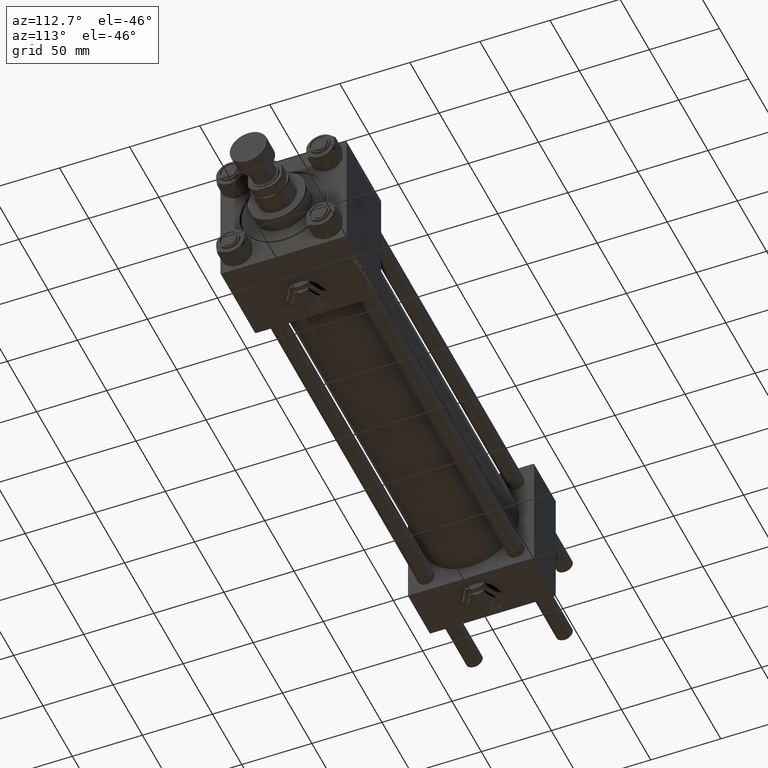
[diagram: clean part render]
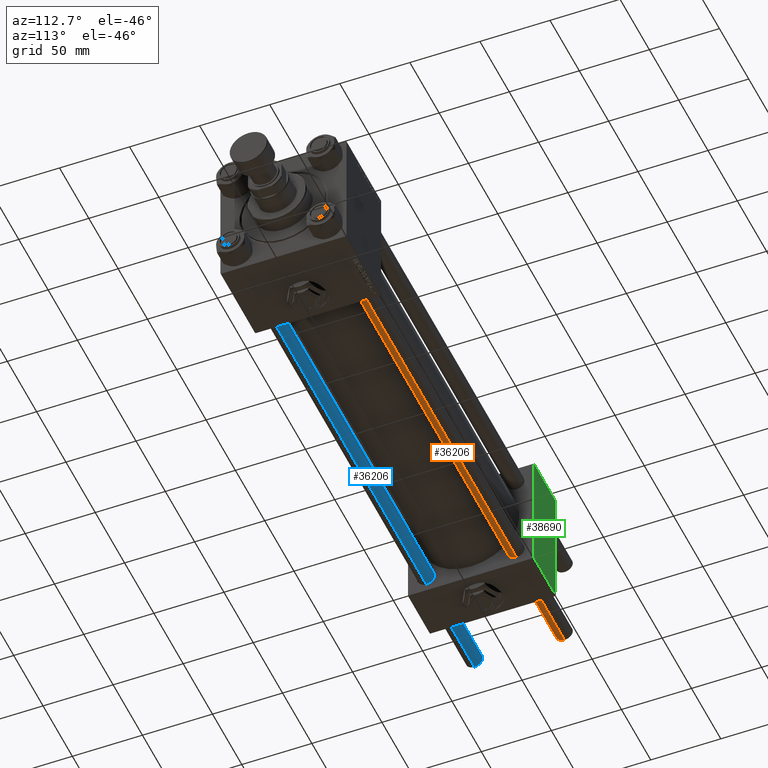
[diagram: same view with three faces highlighted in distinct colors, each labeled with its STEP entity id]
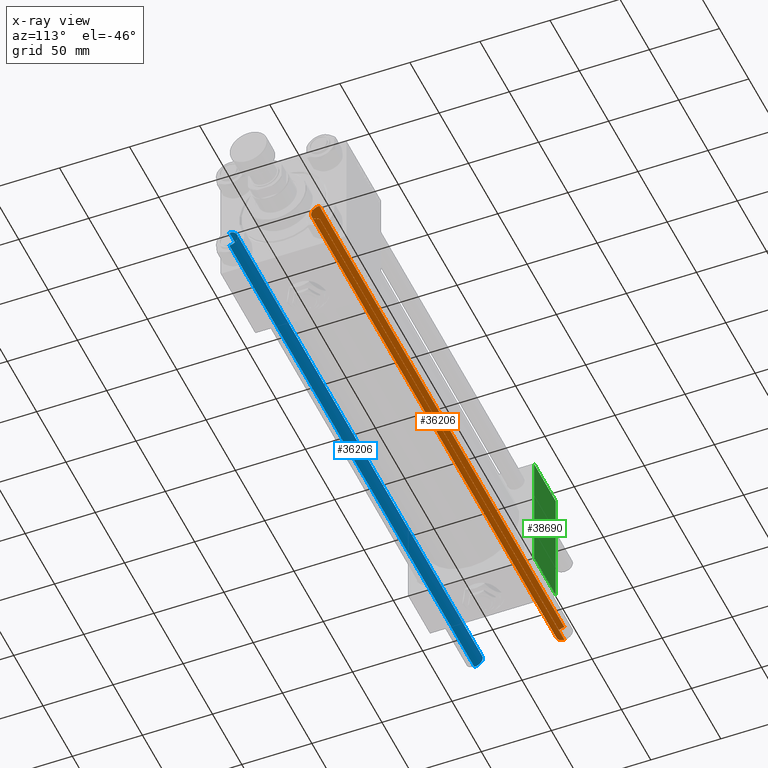
[diagram: x-ray of the same camera — body ghosted, the three highlighted faces saturated]
A machine part, auxiliary view with three faces highlighted in distinct colors.
The next image is the same camera in x-ray (body ghosted, the three faces saturated) — at least one of them is partly hidden behind the body in this view.
Their STEP definitions:

[orange] entity #36206 — the highlighted cylindrical surface (edge-blend (fillet) strip) has radius 6 mm, axis along (1, 0, -0).
#1973 = AXIS2_PLACEMENT_3D ( 'NONE', #44317, #8085, #11543 ) ;
#2348 = CARTESIAN_POINT ( 'NONE',  ( -6.000000000000000888, 0.000000000000000000, 418.5000000000000000 ) ) ;
#3204 = CARTESIAN_POINT ( 'NONE',  ( 6.000000000000000888, 7.347880794884120722E-16, 419.0000000000000000 ) ) ;
#3463 = DIRECTION ( 'NONE',  ( -0.000000000000000000, -0.000000000000000000, -1.000000000000000000 ) ) ;
#3895 = VECTOR ( 'NONE', #36904, 1000.000000000000000 ) ;
#3965 = EDGE_CURVE ( 'NONE', #26252, #23338, #39437, .T. ) ;
#4400 = VERTEX_POINT ( 'NONE', #2348 ) ;
#8085 = DIRECTION ( 'NONE',  ( -0.000000000000000000, -0.000000000000000000, -1.000000000000000000 ) ) ;
#9669 = EDGE_LOOP ( 'NONE', ( #10120, #41196, #51754, #32236 ) ) ;
#10120 = ORIENTED_EDGE ( 'NONE', *, *, #3965, .F. ) ;
#10211 = EDGE_CURVE ( 'NONE', #26252, #4400, #51035, .T. ) ;
#11543 = DIRECTION ( 'NONE',  ( -1.000000000000000000, 0.000000000000000000, 0.000000000000000000 ) ) ;
#15198 = EDGE_CURVE ( 'NONE', #4400, #22840, #28443, .T. ) ;
#16582 = EDGE_CURVE ( 'NONE', #22840, #23338, #33519, .T. ) ;
#18582 = DIRECTION ( 'NONE',  ( 1.000000000000000000, 0.000000000000000000, 0.000000000000000000 ) ) ;
#18735 = VECTOR ( 'NONE', #3463, 1000.000000000000000 ) ;
#22560 = DIRECTION ( 'NONE',  ( -0.000000000000000000, -0.000000000000000000, 1.000000000000000000 ) ) ;
#22840 = VERTEX_POINT ( 'NONE', #46701 ) ;
#23338 = VERTEX_POINT ( 'NONE', #44243 ) ;
#23417 = AXIS2_PLACEMENT_3D ( 'NONE', #25725, #22560, #18582 ) ;
#25725 = CARTESIAN_POINT ( 'NONE',  ( 0.000000000000000000, 0.000000000000000000, 0.5000000000000559552 ) ) ;
#26252 = VERTEX_POINT ( 'NONE', #33182 ) ;
#28443 = LINE ( 'NONE', #40609, #3895 ) ;
#28990 = CARTESIAN_POINT ( 'NONE',  ( 0.000000000000000000, 0.000000000000000000, 418.5000000000000000 ) ) ;
#29258 = DIRECTION ( 'NONE',  ( 0.000000000000000000, 0.000000000000000000, -1.000000000000000000 ) ) ;
#32236 = ORIENTED_EDGE ( 'NONE', *, *, #16582, .T. ) ;
#33182 = CARTESIAN_POINT ( 'NONE',  ( 6.000000000000000888, 7.347880794884120722E-16, 418.5000000000000000 ) ) ;
#33519 = CIRCLE ( 'NONE', #23417, 6.000000000000000888 ) ;
#36124 = FACE_OUTER_BOUND ( 'NONE', #9669, .T. ) ;
#36206 = ADVANCED_FACE ( 'NONE', ( #36124 ), #48276, .T. ) ;
#36904 = DIRECTION ( 'NONE',  ( -0.000000000000000000, -0.000000000000000000, -1.000000000000000000 ) ) ;
#39437 = LINE ( 'NONE', #3204, #18735 ) ;
#40609 = CARTESIAN_POINT ( 'NONE',  ( -6.000000000000000888, 0.000000000000000000, 419.0000000000000000 ) ) ;
#41196 = ORIENTED_EDGE ( 'NONE', *, *, #10211, .T. ) ;
#44243 = CARTESIAN_POINT ( 'NONE',  ( 6.000000000000000888, 7.347880794884120722E-16, 0.5000000000000559552 ) ) ;
#44317 = CARTESIAN_POINT ( 'NONE',  ( 0.000000000000000000, 0.000000000000000000, 419.0000000000000000 ) ) ;
#45394 = DIRECTION ( 'NONE',  ( 1.000000000000000000, 0.000000000000000000, 0.000000000000000000 ) ) ;
#46701 = CARTESIAN_POINT ( 'NONE',  ( -6.000000000000000888, 0.000000000000000000, 0.5000000000000559552 ) ) ;
#48276 = CYLINDRICAL_SURFACE ( 'NONE', #1973, 6.000000000000000888 ) ;
#50189 = AXIS2_PLACEMENT_3D ( 'NONE', #28990, #29258, #45394 ) ;
#51035 = CIRCLE ( 'NONE', #50189, 6.000000000000000888 ) ;
#51754 = ORIENTED_EDGE ( 'NONE', *, *, #15198, .T. ) ;

[blue] entity #36206 — the highlighted cylindrical surface (edge-blend (fillet) strip) has radius 6 mm, axis along (-1, 0, 0).
#1973 = AXIS2_PLACEMENT_3D ( 'NONE', #44317, #8085, #11543 ) ;
#2348 = CARTESIAN_POINT ( 'NONE',  ( -6.000000000000000888, 0.000000000000000000, 418.5000000000000000 ) ) ;
#3204 = CARTESIAN_POINT ( 'NONE',  ( 6.000000000000000888, 7.347880794884120722E-16, 419.0000000000000000 ) ) ;
#3463 = DIRECTION ( 'NONE',  ( -0.000000000000000000, -0.000000000000000000, -1.000000000000000000 ) ) ;
#3895 = VECTOR ( 'NONE', #36904, 1000.000000000000000 ) ;
#3965 = EDGE_CURVE ( 'NONE', #26252, #23338, #39437, .T. ) ;
#4400 = VERTEX_POINT ( 'NONE', #2348 ) ;
#8085 = DIRECTION ( 'NONE',  ( -0.000000000000000000, -0.000000000000000000, -1.000000000000000000 ) ) ;
#9669 = EDGE_LOOP ( 'NONE', ( #10120, #41196, #51754, #32236 ) ) ;
#10120 = ORIENTED_EDGE ( 'NONE', *, *, #3965, .F. ) ;
#10211 = EDGE_CURVE ( 'NONE', #26252, #4400, #51035, .T. ) ;
#11543 = DIRECTION ( 'NONE',  ( -1.000000000000000000, 0.000000000000000000, 0.000000000000000000 ) ) ;
#15198 = EDGE_CURVE ( 'NONE', #4400, #22840, #28443, .T. ) ;
#16582 = EDGE_CURVE ( 'NONE', #22840, #23338, #33519, .T. ) ;
#18582 = DIRECTION ( 'NONE',  ( 1.000000000000000000, 0.000000000000000000, 0.000000000000000000 ) ) ;
#18735 = VECTOR ( 'NONE', #3463, 1000.000000000000000 ) ;
#22560 = DIRECTION ( 'NONE',  ( -0.000000000000000000, -0.000000000000000000, 1.000000000000000000 ) ) ;
#22840 = VERTEX_POINT ( 'NONE', #46701 ) ;
#23338 = VERTEX_POINT ( 'NONE', #44243 ) ;
#23417 = AXIS2_PLACEMENT_3D ( 'NONE', #25725, #22560, #18582 ) ;
#25725 = CARTESIAN_POINT ( 'NONE',  ( 0.000000000000000000, 0.000000000000000000, 0.5000000000000559552 ) ) ;
#26252 = VERTEX_POINT ( 'NONE', #33182 ) ;
#28443 = LINE ( 'NONE', #40609, #3895 ) ;
#28990 = CARTESIAN_POINT ( 'NONE',  ( 0.000000000000000000, 0.000000000000000000, 418.5000000000000000 ) ) ;
#29258 = DIRECTION ( 'NONE',  ( 0.000000000000000000, 0.000000000000000000, -1.000000000000000000 ) ) ;
#32236 = ORIENTED_EDGE ( 'NONE', *, *, #16582, .T. ) ;
#33182 = CARTESIAN_POINT ( 'NONE',  ( 6.000000000000000888, 7.347880794884120722E-16, 418.5000000000000000 ) ) ;
#33519 = CIRCLE ( 'NONE', #23417, 6.000000000000000888 ) ;
#36124 = FACE_OUTER_BOUND ( 'NONE', #9669, .T. ) ;
#36206 = ADVANCED_FACE ( 'NONE', ( #36124 ), #48276, .T. ) ;
#36904 = DIRECTION ( 'NONE',  ( -0.000000000000000000, -0.000000000000000000, -1.000000000000000000 ) ) ;
#39437 = LINE ( 'NONE', #3204, #18735 ) ;
#40609 = CARTESIAN_POINT ( 'NONE',  ( -6.000000000000000888, 0.000000000000000000, 419.0000000000000000 ) ) ;
#41196 = ORIENTED_EDGE ( 'NONE', *, *, #10211, .T. ) ;
#44243 = CARTESIAN_POINT ( 'NONE',  ( 6.000000000000000888, 7.347880794884120722E-16, 0.5000000000000559552 ) ) ;
#44317 = CARTESIAN_POINT ( 'NONE',  ( 0.000000000000000000, 0.000000000000000000, 419.0000000000000000 ) ) ;
#45394 = DIRECTION ( 'NONE',  ( 1.000000000000000000, 0.000000000000000000, 0.000000000000000000 ) ) ;
#46701 = CARTESIAN_POINT ( 'NONE',  ( -6.000000000000000888, 0.000000000000000000, 0.5000000000000559552 ) ) ;
#48276 = CYLINDRICAL_SURFACE ( 'NONE', #1973, 6.000000000000000888 ) ;
#50189 = AXIS2_PLACEMENT_3D ( 'NONE', #28990, #29258, #45394 ) ;
#51035 = CIRCLE ( 'NONE', #50189, 6.000000000000000888 ) ;
#51754 = ORIENTED_EDGE ( 'NONE', *, *, #15198, .T. ) ;

[green] entity #38690 — the highlighted planar face has unit normal (0, 1, 0).
#3604 = VERTEX_POINT ( 'NONE', #44087 ) ;
#3890 = VECTOR ( 'NONE', #19767, 1000.000000000000000 ) ;
#5405 = CARTESIAN_POINT ( 'NONE',  ( 37.00000000000000000, 44.99999999999998579, 45.00000000000001421 ) ) ;
#5673 = LINE ( 'NONE', #5405, #19734 ) ;
#6134 = VECTOR ( 'NONE', #51198, 1000.000000000000000 ) ;
#10542 = CARTESIAN_POINT ( 'NONE',  ( 37.00000000000000000, 44.99999999999998579, 44.50000000000001421 ) ) ;
#11227 = DIRECTION ( 'NONE',  ( 0.000000000000000000, -0.000000000000000000, 1.000000000000000000 ) ) ;
#12019 = ORIENTED_EDGE ( 'NONE', *, *, #26374, .F. ) ;
#14494 = CARTESIAN_POINT ( 'NONE',  ( 37.00000000000000000, 44.99999999999998579, -44.49999999999998579 ) ) ;
#17504 = EDGE_CURVE ( 'NONE', #3604, #39203, #18717, .T. ) ;
#18034 = AXIS2_PLACEMENT_3D ( 'NONE', #42697, #35812, #11227 ) ;
#18185 = EDGE_LOOP ( 'NONE', ( #40226, #18390, #12019, #50576 ) ) ;
#18390 = ORIENTED_EDGE ( 'NONE', *, *, #17504, .T. ) ;
#18717 = LINE ( 'NONE', #14494, #3890 ) ;
#19734 = VECTOR ( 'NONE', #21545, 1000.000000000000000 ) ;
#19767 = DIRECTION ( 'NONE',  ( -1.000000000000000000, 0.000000000000000000, 0.000000000000000000 ) ) ;
#21161 = LINE ( 'NONE', #37280, #6134 ) ;
#21545 = DIRECTION ( 'NONE',  ( 0.000000000000000000, 0.000000000000000000, -1.000000000000000000 ) ) ;
#26374 = EDGE_CURVE ( 'NONE', #38370, #39203, #50373, .T. ) ;
#30494 = DIRECTION ( 'NONE',  ( 0.000000000000000000, 0.000000000000000000, -1.000000000000000000 ) ) ;
#31837 = PLANE ( 'NONE',  #18034 ) ;
#33698 = EDGE_CURVE ( 'NONE', #38370, #40384, #21161, .T. ) ;
#33773 = CARTESIAN_POINT ( 'NONE',  ( 0.000000000000000000, 44.99999999999998579, 44.50000000000001421 ) ) ;
#35812 = DIRECTION ( 'NONE',  ( -0.000000000000000000, 1.000000000000000000, 0.000000000000000000 ) ) ;
#36288 = EDGE_CURVE ( 'NONE', #40384, #3604, #5673, .T. ) ;
#37280 = CARTESIAN_POINT ( 'NONE',  ( 37.00000000000000000, 44.99999999999998579, 44.50000000000001421 ) ) ;
#38370 = VERTEX_POINT ( 'NONE', #33773 ) ;
#38690 = ADVANCED_FACE ( 'NONE', ( #38987 ), #31837, .T. ) ;
#38718 = CARTESIAN_POINT ( 'NONE',  ( 0.000000000000000000, 44.99999999999998579, 45.00000000000001421 ) ) ;
#38987 = FACE_OUTER_BOUND ( 'NONE', #18185, .T. ) ;
#39203 = VERTEX_POINT ( 'NONE', #50702 ) ;
#40226 = ORIENTED_EDGE ( 'NONE', *, *, #36288, .T. ) ;
#40384 = VERTEX_POINT ( 'NONE', #10542 ) ;
#42697 = CARTESIAN_POINT ( 'NONE',  ( 37.00000000000000000, 44.99999999999998579, 45.00000000000001421 ) ) ;
#44087 = CARTESIAN_POINT ( 'NONE',  ( 37.00000000000000000, 44.99999999999998579, -44.49999999999995737 ) ) ;
#48127 = VECTOR ( 'NONE', #30494, 1000.000000000000000 ) ;
#50373 = LINE ( 'NONE', #38718, #48127 ) ;
#50576 = ORIENTED_EDGE ( 'NONE', *, *, #33698, .T. ) ;
#50702 = CARTESIAN_POINT ( 'NONE',  ( 0.000000000000000000, 44.99999999999998579, -44.49999999999995737 ) ) ;
#51198 = DIRECTION ( 'NONE',  ( 1.000000000000000000, 0.000000000000000000, 0.000000000000000000 ) ) ;